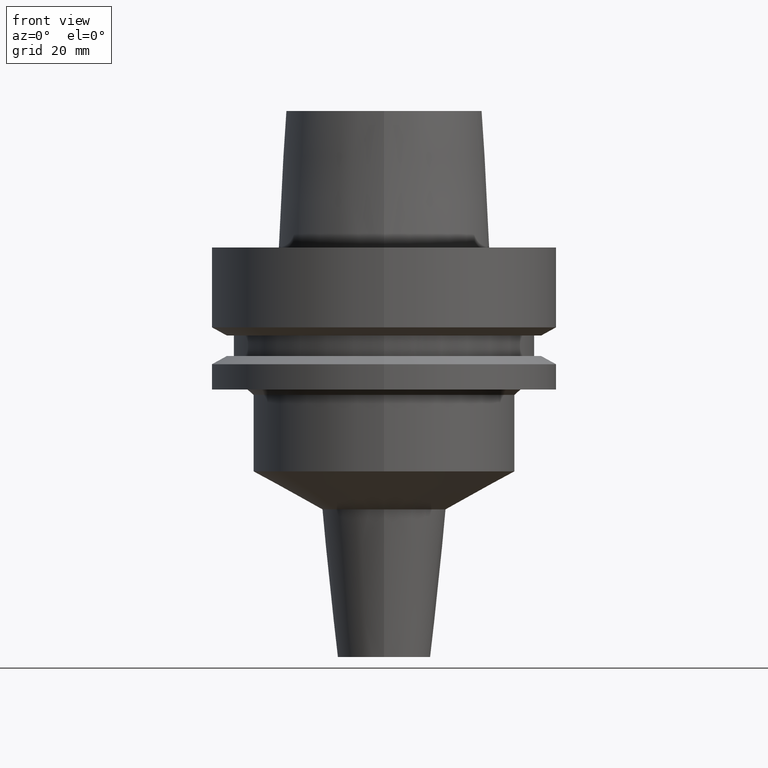
[diagram: clean part render]
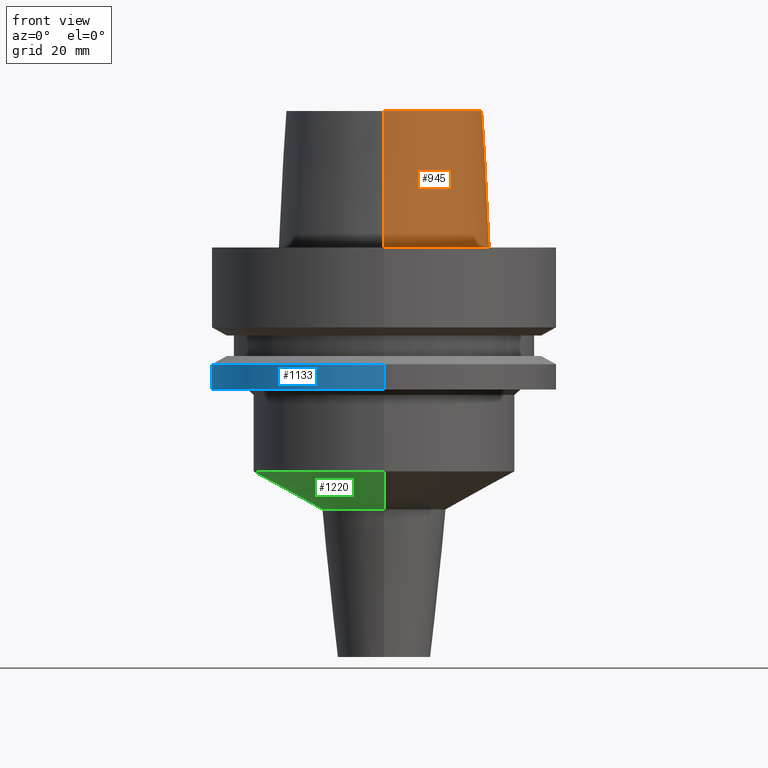
[diagram: same view with three faces highlighted in distinct colors, each labeled with its STEP entity id]
A machine part, front view with three faces highlighted in distinct colors.
Their STEP definitions:

[orange] entity #945 — the highlighted conical surface has half-angle 2.862 deg.
#26=CARTESIAN_POINT('',(0.E0,0.E0,2.5E1));
#27=DIRECTION('',(0.E0,0.E0,-1.E0));
#28=DIRECTION('',(0.E0,1.E0,0.E0));
#29=AXIS2_PLACEMENT_3D('',#26,#27,#28);
#50=DIRECTION('',(0.E0,-4.993752584487E-2,-9.987523434328E-1));
#51=VECTOR('',#50,2.503123037897E1);
#52=CARTESIAN_POINT('',(0.E0,-1.800000182882E1,2.5E1));
#53=LINE('',#52,#51);
#57=DIRECTION('',(0.E0,4.993752584487E-2,-9.987523434328E-1));
#58=VECTOR('',#57,2.503123037897E1);
#59=CARTESIAN_POINT('',(0.E0,1.800000182882E1,2.5E1));
#60=LINE('',#59,#58);
#80=CARTESIAN_POINT('',(0.E0,0.E0,2.273736754432E-13));
#81=DIRECTION('',(0.E0,0.E0,1.E0));
#82=DIRECTION('',(0.E0,-1.E0,0.E0));
#83=AXIS2_PLACEMENT_3D('',#80,#81,#82);
#780=CARTESIAN_POINT('',(0.E0,-1.800000182882E1,2.5E1));
#781=CARTESIAN_POINT('',(0.E0,1.800000182882E1,2.5E1));
#782=VERTEX_POINT('',#780);
#783=VERTEX_POINT('',#781);
#896=CARTESIAN_POINT('',(0.E0,-1.924999954280E1,2.273736754432E-13));
#897=CARTESIAN_POINT('',(0.E0,1.924999954280E1,2.273736754432E-13));
#898=VERTEX_POINT('',#896);
#899=VERTEX_POINT('',#897);
#933=CARTESIAN_POINT('',(0.E0,0.E0,1.25E1));
#934=DIRECTION('',(0.E0,0.E0,-1.E0));
#935=DIRECTION('',(0.E0,-1.E0,0.E0));
#936=AXIS2_PLACEMENT_3D('',#933,#934,#935);
#937=CONICAL_SURFACE('',#936,1.862500068581E1,2.8624E0);
#938=ORIENTED_EDGE('',*,*,#923,.T.);
#940=ORIENTED_EDGE('',*,*,#939,.F.);
#941=ORIENTED_EDGE('',*,*,#926,.F.);
#942=ORIENTED_EDGE('',*,*,#907,.F.);
#943=EDGE_LOOP('',(#938,#940,#941,#942));
#944=FACE_OUTER_BOUND('',#943,.F.);
#30=CIRCLE('',#29,1.800000182882E1);
#84=CIRCLE('',#83,1.924999954280E1);
#907=EDGE_CURVE('',#783,#782,#30,.T.);
#923=EDGE_CURVE('',#783,#899,#60,.T.);
#926=EDGE_CURVE('',#782,#898,#53,.T.);
#939=EDGE_CURVE('',#898,#899,#84,.T.);
#945=ADVANCED_FACE('',(#944),#937,.T.);

[blue] entity #1133 — the highlighted cylindrical surface (partial cylindrical patch) has radius 31.5 mm, axis along (0, 0, -1).
#225=CARTESIAN_POINT('',(0.E0,0.E0,-2.137749907476E1));
#226=DIRECTION('',(0.E0,0.E0,-1.E0));
#227=DIRECTION('',(0.E0,-1.E0,0.E0));
#228=AXIS2_PLACEMENT_3D('',#225,#226,#227);
#248=DIRECTION('',(0.E0,-1.306568316943E-13,-1.E0));
#249=VECTOR('',#248,4.622500925241E0);
#250=CARTESIAN_POINT('',(0.E0,3.15E1,-2.137749907476E1));
#251=LINE('',#250,#249);
#255=DIRECTION('',(0.E0,1.306568316943E-13,-1.E0));
#256=VECTOR('',#255,4.622500925241E0);
#257=CARTESIAN_POINT('',(0.E0,-3.15E1,-2.137749907476E1));
#258=LINE('',#257,#256);
#270=CARTESIAN_POINT('',(0.E0,0.E0,-2.6E1));
#271=DIRECTION('',(0.E0,0.E0,1.E0));
#272=DIRECTION('',(0.E0,1.E0,0.E0));
#273=AXIS2_PLACEMENT_3D('',#270,#271,#272);
#864=CARTESIAN_POINT('',(0.E0,-3.15E1,-2.6E1));
#865=CARTESIAN_POINT('',(0.E0,3.15E1,-2.6E1));
#866=VERTEX_POINT('',#864);
#867=VERTEX_POINT('',#865);
#868=CARTESIAN_POINT('',(0.E0,3.15E1,-2.137749907476E1));
#869=VERTEX_POINT('',#868);
#870=CARTESIAN_POINT('',(0.E0,-3.15E1,-2.137749907476E1));
#871=VERTEX_POINT('',#870);
#1121=CARTESIAN_POINT('',(0.E0,0.E0,3.E1));
#1122=DIRECTION('',(0.E0,0.E0,-1.E0));
#1123=DIRECTION('',(0.E0,-1.E0,0.E0));
#1124=AXIS2_PLACEMENT_3D('',#1121,#1122,#1123);
#1125=CYLINDRICAL_SURFACE('',#1124,3.15E1);
#1126=ORIENTED_EDGE('',*,*,#1111,.F.);
#1127=ORIENTED_EDGE('',*,*,#1088,.F.);
#1128=ORIENTED_EDGE('',*,*,#1115,.T.);
#1130=ORIENTED_EDGE('',*,*,#1129,.F.);
#1131=EDGE_LOOP('',(#1126,#1127,#1128,#1130));
#1132=FACE_OUTER_BOUND('',#1131,.F.);
#229=CIRCLE('',#228,3.15E1);
#274=CIRCLE('',#273,3.15E1);
#1088=EDGE_CURVE('',#871,#869,#229,.T.);
#1111=EDGE_CURVE('',#869,#867,#251,.T.);
#1115=EDGE_CURVE('',#871,#866,#258,.T.);
#1129=EDGE_CURVE('',#867,#866,#274,.T.);
#1133=ADVANCED_FACE('',(#1132),#1125,.T.);

[green] entity #1220 — the highlighted conical surface has half-angle 61.2 deg.
#338=CARTESIAN_POINT('',(0.E0,0.E0,-4.1E1));
#339=DIRECTION('',(0.E0,0.E0,1.E0));
#340=DIRECTION('',(0.E0,1.E0,0.E0));
#341=AXIS2_PLACEMENT_3D('',#338,#339,#340);
#346=DIRECTION('',(0.E0,8.763066800439E-1,-4.817536741016E-1));
#347=VECTOR('',#346,1.444453881849E1);
#348=CARTESIAN_POINT('',(0.E0,-2.4E1,-4.1E1));
#349=LINE('',#348,#347);
#353=CARTESIAN_POINT('',(0.E0,0.E0,-4.795870964652E1));
#354=DIRECTION('',(0.E0,0.E0,-1.E0));
#355=DIRECTION('',(0.E0,-1.E0,0.E0));
#356=AXIS2_PLACEMENT_3D('',#353,#354,#355);
#361=DIRECTION('',(0.E0,-8.763066800439E-1,-4.817536741016E-1));
#362=VECTOR('',#361,1.444453881849E1);
#363=CARTESIAN_POINT('',(0.E0,2.4E1,-4.1E1));
#364=LINE('',#363,#362);
#848=CARTESIAN_POINT('',(0.E0,1.134215414320E1,-4.795870964651E1));
#849=VERTEX_POINT('',#848);
#850=CARTESIAN_POINT('',(0.E0,-1.134215414320E1,-4.795870964651E1));
#851=VERTEX_POINT('',#850);
#852=CARTESIAN_POINT('',(0.E0,2.4E1,-4.1E1));
#853=VERTEX_POINT('',#852);
#854=CARTESIAN_POINT('',(0.E0,-2.4E1,-4.1E1));
#855=VERTEX_POINT('',#854);
#1206=CARTESIAN_POINT('',(0.E0,0.E0,-4.447935482326E1));
#1207=DIRECTION('',(0.E0,0.E0,1.E0));
#1208=DIRECTION('',(0.E0,1.E0,0.E0));
#1209=AXIS2_PLACEMENT_3D('',#1206,#1207,#1208);
#1210=CONICAL_SURFACE('',#1209,1.767107707160E1,6.12E1);
#1212=ORIENTED_EDGE('',*,*,#1211,.F.);
#1213=ORIENTED_EDGE('',*,*,#1201,.T.);
#1215=ORIENTED_EDGE('',*,*,#1214,.T.);
#1217=ORIENTED_EDGE('',*,*,#1216,.T.);
#1218=EDGE_LOOP('',(#1212,#1213,#1215,#1217));
#1219=FACE_OUTER_BOUND('',#1218,.F.);
#342=CIRCLE('',#341,2.4E1);
#357=CIRCLE('',#356,1.134215414320E1);
#1201=EDGE_CURVE('',#853,#855,#342,.T.);
#1211=EDGE_CURVE('',#853,#849,#364,.T.);
#1214=EDGE_CURVE('',#855,#851,#349,.T.);
#1216=EDGE_CURVE('',#851,#849,#357,.T.);
#1220=ADVANCED_FACE('',(#1219),#1210,.T.);